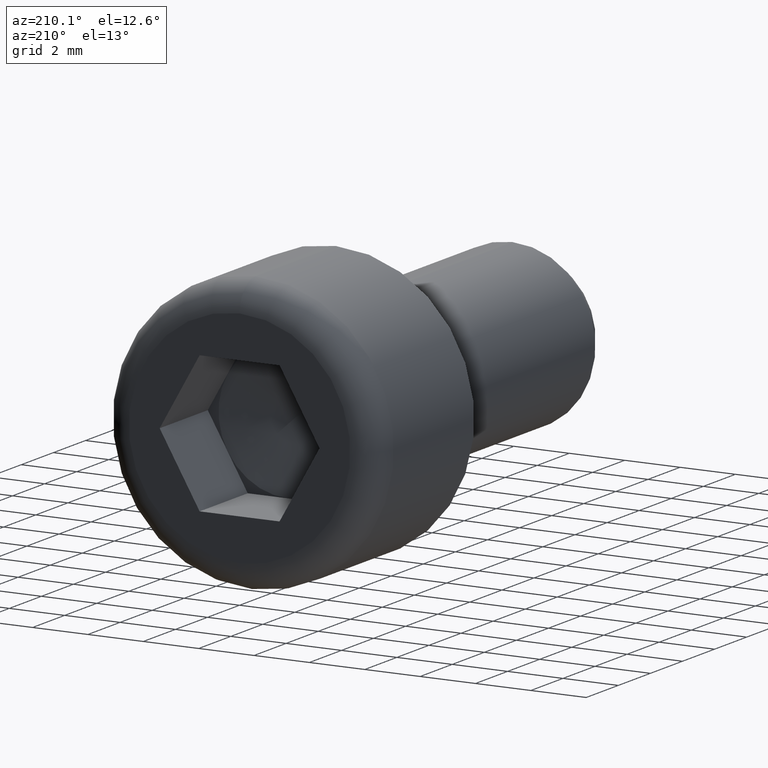
[diagram: clean part render]
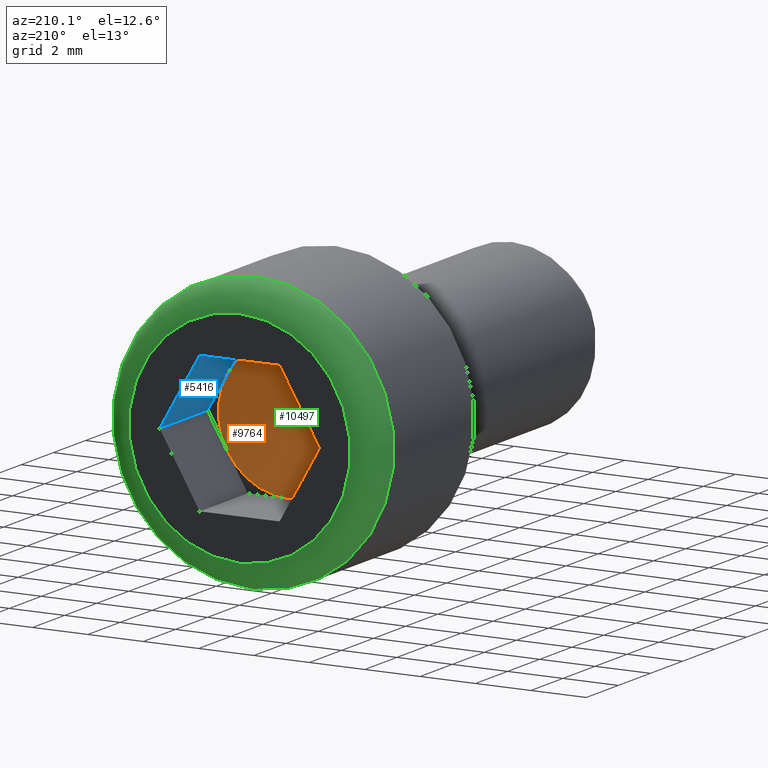
[diagram: same view with three faces highlighted in distinct colors, each labeled with its STEP entity id]
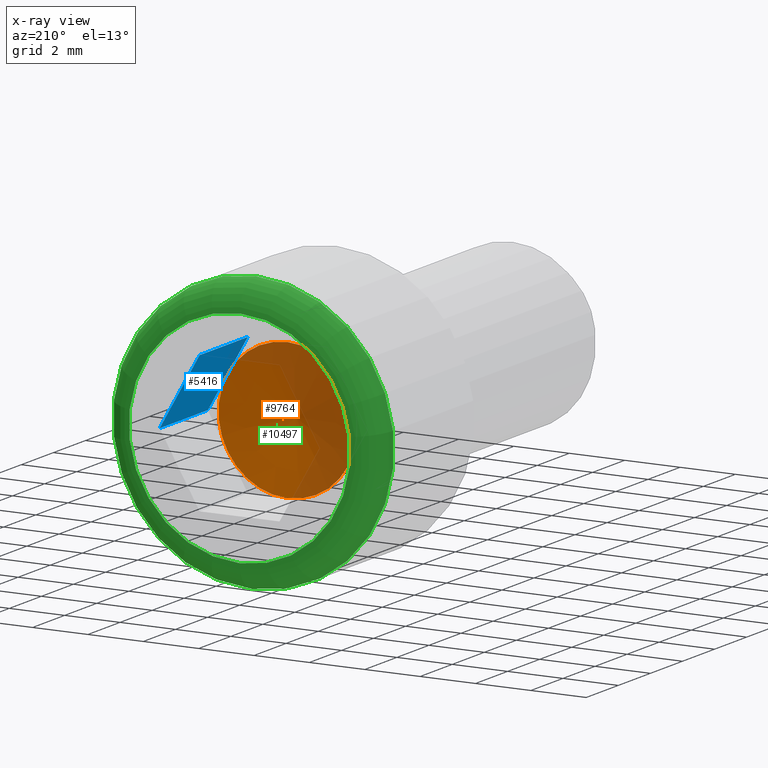
[diagram: x-ray of the same camera — body ghosted, the three highlighted faces saturated]
A machine part, auxiliary view with three faces highlighted in distinct colors.
The next image is the same camera in x-ray (body ghosted, the three faces saturated) — at least one of them is partly hidden behind the body in this view.
Their STEP definitions:

[orange] entity #9764 — the highlighted conical surface has half-angle 78.69 deg.
#618 = DIRECTION ( 'NONE',  ( -1.000000000000000000, 0.0000000000000000000, 0.0000000000000000000 ) ) ;
#1069 = AXIS2_PLACEMENT_3D ( 'NONE', #16559, #13798, #2845 ) ;
#1610 = AXIS2_PLACEMENT_3D ( 'NONE', #6769, #5311, #8177 ) ;
#1774 = ORIENTED_EDGE ( 'NONE', *, *, #15835, .T. ) ;
#2051 = DIRECTION ( 'NONE',  ( -1.000000000000000000, -4.440892098500620200E-017, 0.0000000000000000000 ) ) ;
#2163 = EDGE_CURVE ( 'NONE', #10703, #3474, #10488, .T. ) ;
#2239 = CONICAL_SURFACE ( 'NONE', #8419, 5000.000000000006400, 1.373400766945016100 ) ;
#2845 = DIRECTION ( 'NONE',  ( -1.000000000000000000, 0.0000000000000000000, 0.0000000000000000000 ) ) ;
#3099 = DIRECTION ( 'NONE',  ( -1.000000000000000000, 0.0000000000000000000, 0.0000000000000000000 ) ) ;
#3132 = CARTESIAN_POINT ( 'NONE',  ( -3.528090403121486800E-017, 2.999999999999999600, 0.0000000000000000000 ) ) ;
#3474 = VERTEX_POINT ( 'NONE', #13546 ) ;
#3492 = CIRCLE ( 'NONE', #14397, 2.500000000000000000 ) ;
#4632 = DIRECTION ( 'NONE',  ( -1.000000000000000000, 0.0000000000000000000, 0.0000000000000000000 ) ) ;
#4947 = CARTESIAN_POINT ( 'NONE',  ( -3.528090403121486800E-017, 2.999999999999999600, 2.500000000000000000 ) ) ;
#5311 = DIRECTION ( 'NONE',  ( -7.056180806242981000E-017, 1.000000000000000000, -0.0000000000000000000 ) ) ;
#5843 = VERTEX_POINT ( 'NONE', #17263 ) ;
#6017 = EDGE_CURVE ( 'NONE', #3474, #14982, #15579, .T. ) ;
#6407 = ORIENTED_EDGE ( 'NONE', *, *, #2163, .T. ) ;
#6769 = CARTESIAN_POINT ( 'NONE',  ( -3.528090403121486800E-017, 2.999999999999999600, 0.0000000000000000000 ) ) ;
#8177 = DIRECTION ( 'NONE',  ( -1.000000000000000000, 0.0000000000000000000, 0.0000000000000000000 ) ) ;
#8360 = EDGE_LOOP ( 'NONE', ( #1774, #6407, #14677, #15096, #13443, #9898 ) ) ;
#8419 = AXIS2_PLACEMENT_3D ( 'NONE', #15688, #14256, #2051 ) ;
#8467 = EDGE_CURVE ( 'NONE', #8472, #5843, #9767, .T. ) ;
#8472 = VERTEX_POINT ( 'NONE', #15403 ) ;
#8555 = DIRECTION ( 'NONE',  ( -7.056180806242981000E-017, 1.000000000000000000, -0.0000000000000000000 ) ) ;
#8795 = AXIS2_PLACEMENT_3D ( 'NONE', #11105, #8555, #3099 ) ;
#9034 = DIRECTION ( 'NONE',  ( -1.000000000000000000, 0.0000000000000000000, 0.0000000000000000000 ) ) ;
#9563 = AXIS2_PLACEMENT_3D ( 'NONE', #10027, #14215, #9034 ) ;
#9686 = AXIS2_PLACEMENT_3D ( 'NONE', #9888, #11446, #4632 ) ;
#9764 = ADVANCED_FACE ( 'NONE', ( #10392 ), #2239, .F. ) ;
#9767 = CIRCLE ( 'NONE', #9563, 2.500000000000000000 ) ;
#9888 = CARTESIAN_POINT ( 'NONE',  ( -3.528090403121486800E-017, 2.999999999999999600, 0.0000000000000000000 ) ) ;
#9898 = ORIENTED_EDGE ( 'NONE', *, *, #14242, .T. ) ;
#10027 = CARTESIAN_POINT ( 'NONE',  ( -3.528090403121486800E-017, 2.999999999999999600, 0.0000000000000000000 ) ) ;
#10392 = FACE_OUTER_BOUND ( 'NONE', #8360, .T. ) ;
#10488 = CIRCLE ( 'NONE', #1610, 2.500000000000000000 ) ;
#10703 = VERTEX_POINT ( 'NONE', #4947 ) ;
#11105 = CARTESIAN_POINT ( 'NONE',  ( -3.528090403121486800E-017, 2.999999999999999600, 0.0000000000000000000 ) ) ;
#11154 = CIRCLE ( 'NONE', #9686, 2.500000000000000000 ) ;
#11446 = DIRECTION ( 'NONE',  ( -7.056180806242981000E-017, 1.000000000000000000, -0.0000000000000000000 ) ) ;
#13115 = CIRCLE ( 'NONE', #8795, 2.500000000000000000 ) ;
#13443 = ORIENTED_EDGE ( 'NONE', *, *, #8467, .T. ) ;
#13546 = CARTESIAN_POINT ( 'NONE',  ( 2.165063509461096800, 2.999999999999999600, 1.249999999999999800 ) ) ;
#13798 = DIRECTION ( 'NONE',  ( -7.056180806242981000E-017, 1.000000000000000000, -0.0000000000000000000 ) ) ;
#14215 = DIRECTION ( 'NONE',  ( -7.056180806242981000E-017, 1.000000000000000000, -0.0000000000000000000 ) ) ;
#14242 = EDGE_CURVE ( 'NONE', #5843, #14680, #13115, .T. ) ;
#14256 = DIRECTION ( 'NONE',  ( -7.056180806242981000E-017, 1.000000000000000000, -0.0000000000000000000 ) ) ;
#14397 = AXIS2_PLACEMENT_3D ( 'NONE', #3132, #15619, #618 ) ;
#14677 = ORIENTED_EDGE ( 'NONE', *, *, #6017, .T. ) ;
#14680 = VERTEX_POINT ( 'NONE', #14984 ) ;
#14982 = VERTEX_POINT ( 'NONE', #16117 ) ;
#14984 = CARTESIAN_POINT ( 'NONE',  ( -2.165063509461096400, 2.999999999999999600, 1.250000000000000400 ) ) ;
#15096 = ORIENTED_EDGE ( 'NONE', *, *, #15282, .T. ) ;
#15282 = EDGE_CURVE ( 'NONE', #14982, #8472, #11154, .T. ) ;
#15403 = CARTESIAN_POINT ( 'NONE',  ( -4.108595537155047100E-016, 2.999999999999999600, -2.500000000000000000 ) ) ;
#15579 = CIRCLE ( 'NONE', #1069, 2.500000000000000000 ) ;
#15619 = DIRECTION ( 'NONE',  ( -7.056180806242981000E-017, 1.000000000000000000, -0.0000000000000000000 ) ) ;
#15688 = CARTESIAN_POINT ( 'NONE',  ( -7.056180806242981500E-014, 1002.500000000000000, 0.0000000000000000000 ) ) ;
#15835 = EDGE_CURVE ( 'NONE', #14680, #10703, #3492, .T. ) ;
#16117 = CARTESIAN_POINT ( 'NONE',  ( 2.165063509461096400, 2.999999999999999600, -1.250000000000000700 ) ) ;
#16559 = CARTESIAN_POINT ( 'NONE',  ( -3.528090403121486800E-017, 2.999999999999999600, 0.0000000000000000000 ) ) ;
#17263 = CARTESIAN_POINT ( 'NONE',  ( -2.165063509461097300, 2.999999999999999600, -1.250000000000000200 ) ) ;

[blue] entity #5416 — the highlighted planar face has unit normal (0.866, 0, 0.5).
#409 = LINE ( 'NONE', #17162, #13059 ) ;
#705 = DIRECTION ( 'NONE',  ( -0.0000000000000000000, 1.000000000000000000, -0.0000000000000000000 ) ) ;
#1020 = ORIENTED_EDGE ( 'NONE', *, *, #2844, .T. ) ;
#1394 = CARTESIAN_POINT ( 'NONE',  ( 1.443375672974063900, 6.000000000000000000, 2.499999999999999600 ) ) ;
#1590 = EDGE_CURVE ( 'NONE', #2593, #3474, #14119, .T. ) ;
#1682 = ORIENTED_EDGE ( 'NONE', *, *, #14810, .F. ) ;
#2063 = CARTESIAN_POINT ( 'NONE',  ( 1.443375672974063900, 3.000000000000000000, 2.499999999999999600 ) ) ;
#2167 = EDGE_CURVE ( 'NONE', #13621, #8993, #4712, .T. ) ;
#2578 = CARTESIAN_POINT ( 'NONE',  ( 2.886751345948129100, 3.000000000000000000, -1.622115607234191400E-015 ) ) ;
#2593 = VERTEX_POINT ( 'NONE', #12189 ) ;
#2844 = EDGE_CURVE ( 'NONE', #2593, #13621, #409, .T. ) ;
#3452 = CARTESIAN_POINT ( 'NONE',  ( 1.443375672974063900, 3.000000000000000000, 2.499999999999999600 ) ) ;
#3474 = VERTEX_POINT ( 'NONE', #13546 ) ;
#4712 = LINE ( 'NONE', #1394, #15609 ) ;
#4899 = VERTEX_POINT ( 'NONE', #2578 ) ;
#5137 = VECTOR ( 'NONE', #14832, 1000.000000000000100 ) ;
#5416 = ADVANCED_FACE ( 'NONE', ( #17508 ), #15611, .F. ) ;
#5567 = ORIENTED_EDGE ( 'NONE', *, *, #1590, .F. ) ;
#6357 = CARTESIAN_POINT ( 'NONE',  ( 2.886751345948129100, 6.000000000000000000, -1.622115607234191400E-015 ) ) ;
#7363 = EDGE_CURVE ( 'NONE', #4899, #8993, #7459, .T. ) ;
#7459 = LINE ( 'NONE', #9765, #13629 ) ;
#7982 = ORIENTED_EDGE ( 'NONE', *, *, #2167, .T. ) ;
#8700 = DIRECTION ( 'NONE',  ( 0.4999999999999998900, 0.0000000000000000000, -0.8660254037844386000 ) ) ;
#8818 = DIRECTION ( 'NONE',  ( 0.8660254037844387100, 0.0000000000000000000, 0.4999999999999999400 ) ) ;
#8993 = VERTEX_POINT ( 'NONE', #6357 ) ;
#9250 = VECTOR ( 'NONE', #17037, 1000.000000000000100 ) ;
#9765 = CARTESIAN_POINT ( 'NONE',  ( 2.886751345948129100, 3.000000000000000000, -1.622115607234191400E-015 ) ) ;
#10180 = CARTESIAN_POINT ( 'NONE',  ( 1.443375672974063900, 3.000000000000000000, 2.499999999999999600 ) ) ;
#12189 = CARTESIAN_POINT ( 'NONE',  ( 1.443375672974063900, 3.000000000000000000, 2.499999999999999600 ) ) ;
#13059 = VECTOR ( 'NONE', #705, 1000.000000000000000 ) ;
#13339 = AXIS2_PLACEMENT_3D ( 'NONE', #10180, #8818, #8700 ) ;
#13546 = CARTESIAN_POINT ( 'NONE',  ( 2.165063509461096800, 2.999999999999999600, 1.249999999999999800 ) ) ;
#13621 = VERTEX_POINT ( 'NONE', #14895 ) ;
#13629 = VECTOR ( 'NONE', #14189, 1000.000000000000000 ) ;
#13731 = LINE ( 'NONE', #2063, #9250 ) ;
#14119 = LINE ( 'NONE', #3452, #5137 ) ;
#14189 = DIRECTION ( 'NONE',  ( -0.0000000000000000000, 1.000000000000000000, -0.0000000000000000000 ) ) ;
#14810 = EDGE_CURVE ( 'NONE', #3474, #4899, #13731, .T. ) ;
#14832 = DIRECTION ( 'NONE',  ( 0.4999999999999999400, 0.0000000000000000000, -0.8660254037844386000 ) ) ;
#14895 = CARTESIAN_POINT ( 'NONE',  ( 1.443375672974063400, 6.000000000000000000, 2.499999999999999600 ) ) ;
#15051 = ORIENTED_EDGE ( 'NONE', *, *, #7363, .F. ) ;
#15609 = VECTOR ( 'NONE', #17622, 1000.000000000000100 ) ;
#15611 = PLANE ( 'NONE',  #13339 ) ;
#16355 = EDGE_LOOP ( 'NONE', ( #7982, #15051, #1682, #5567, #1020 ) ) ;
#17037 = DIRECTION ( 'NONE',  ( 0.4999999999999999400, 0.0000000000000000000, -0.8660254037844386000 ) ) ;
#17162 = CARTESIAN_POINT ( 'NONE',  ( 1.443375672974063900, 3.000000000000000000, 2.499999999999999600 ) ) ;
#17508 = FACE_OUTER_BOUND ( 'NONE', #16355, .T. ) ;
#17622 = DIRECTION ( 'NONE',  ( 0.4999999999999999400, 0.0000000000000000000, -0.8660254037844386000 ) ) ;

[green] entity #10497 — the highlighted toroidal blend (fillet) surface has major radius 4 mm and minor (blend) radius 1 mm.
#327 = TOROIDAL_SURFACE ( 'NONE', #14141, 4.000000000000000000, 1.000000000000000000 ) ;
#1505 = CARTESIAN_POINT ( 'NONE',  ( 0.0000000000000000000, 6.000000000000000000, 4.000000000000000000 ) ) ;
#1519 = ORIENTED_EDGE ( 'NONE', *, *, #5409, .F. ) ;
#1524 = DIRECTION ( 'NONE',  ( 0.0000000000000000000, 0.0000000000000000000, 1.000000000000000000 ) ) ;
#2282 = DIRECTION ( 'NONE',  ( 0.0000000000000000000, 0.0000000000000000000, 1.000000000000000000 ) ) ;
#3984 = FACE_OUTER_BOUND ( 'NONE', #10320, .T. ) ;
#4222 = EDGE_LOOP ( 'NONE', ( #8293 ) ) ;
#4681 = CARTESIAN_POINT ( 'NONE',  ( 0.0000000000000000000, 5.000000000000000000, 0.0000000000000000000 ) ) ;
#5409 = EDGE_CURVE ( 'NONE', #6725, #6725, #13239, .T. ) ;
#6136 = DIRECTION ( 'NONE',  ( -0.0000000000000000000, -1.000000000000000000, -0.0000000000000000000 ) ) ;
#6725 = VERTEX_POINT ( 'NONE', #13315 ) ;
#6991 = EDGE_CURVE ( 'NONE', #7543, #7543, #14492, .T. ) ;
#7127 = DIRECTION ( 'NONE',  ( 0.0000000000000000000, 1.000000000000000000, 0.0000000000000000000 ) ) ;
#7543 = VERTEX_POINT ( 'NONE', #1505 ) ;
#8293 = ORIENTED_EDGE ( 'NONE', *, *, #6991, .F. ) ;
#8876 = AXIS2_PLACEMENT_3D ( 'NONE', #4681, #6136, #17128 ) ;
#9248 = DIRECTION ( 'NONE',  ( 0.0000000000000000000, 1.000000000000000000, 0.0000000000000000000 ) ) ;
#10320 = EDGE_LOOP ( 'NONE', ( #1519 ) ) ;
#10497 = ADVANCED_FACE ( 'NONE', ( #3984, #12745 ), #327, .T. ) ;
#12745 = FACE_OUTER_BOUND ( 'NONE', #4222, .T. ) ;
#13239 = CIRCLE ( 'NONE', #8876, 5.000000000000000000 ) ;
#13315 = CARTESIAN_POINT ( 'NONE',  ( 0.0000000000000000000, 5.000000000000000000, 5.000000000000000000 ) ) ;
#13671 = AXIS2_PLACEMENT_3D ( 'NONE', #15987, #9248, #2282 ) ;
#13970 = CARTESIAN_POINT ( 'NONE',  ( 0.0000000000000000000, 5.000000000000000000, 0.0000000000000000000 ) ) ;
#14141 = AXIS2_PLACEMENT_3D ( 'NONE', #13970, #7127, #1524 ) ;
#14492 = CIRCLE ( 'NONE', #13671, 4.000000000000000000 ) ;
#15987 = CARTESIAN_POINT ( 'NONE',  ( 0.0000000000000000000, 6.000000000000000000, 0.0000000000000000000 ) ) ;
#17128 = DIRECTION ( 'NONE',  ( 0.0000000000000000000, 0.0000000000000000000, 1.000000000000000000 ) ) ;